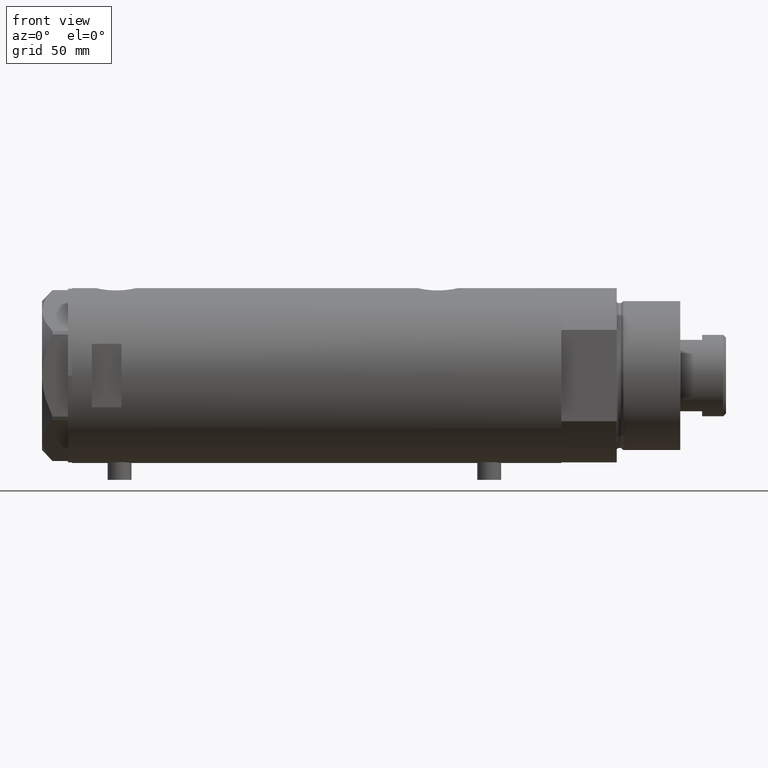
[diagram: clean part render]
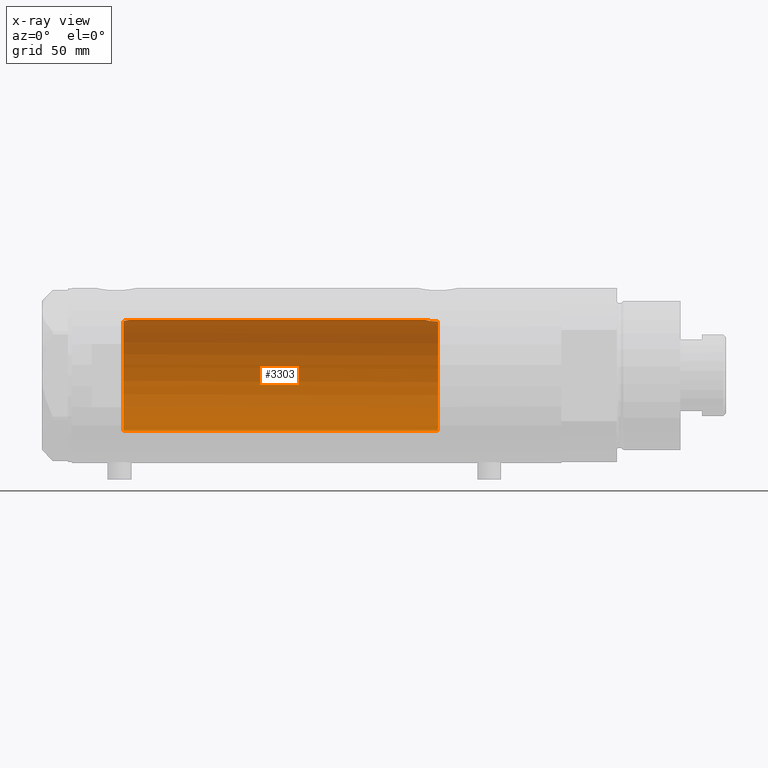
[diagram: x-ray — body ghosted, one internal face saturated and labeled with its STEP entity id]
A machine part, front view, then the same camera in x-ray: the body is ghosted and one INTERNAL B-rep face — a face not visible from any outside direction — is saturated and labeled: STEP entity #3303.
In plain terms, the highlighted cylindrical surface (partial cylindrical patch) has radius 28 mm, axis along (1, 0, -0).
Its self-contained STEP definition (entity closure, byte-faithful):
#8 = CARTESIAN_POINT ( 'NONE',  ( 27.26132124301010506, 6.389601967157234164, -59.46983701249833132 ) ) ;
#42 = CARTESIAN_POINT ( 'NONE',  ( 27.98989376185446076, 0.8673308354119261265, -54.56259295538818321 ) ) ;
#49 = CARTESIAN_POINT ( 'NONE',  ( -28.00000000000000000, 0.000000000000000000, 123.2000000000000028 ) ) ;
#70 = CARTESIAN_POINT ( 'NONE',  ( 27.80267334785860101, 3.323944738624905693, -55.41709962017579727 ) ) ;
#154 = CIRCLE ( 'NONE', #2760, 28.00000000000000000 ) ;
#186 = FACE_OUTER_BOUND ( 'NONE', #2447, .T. ) ;
#268 = CYLINDRICAL_SURFACE ( 'NONE', #3908, 28.00000000000000000 ) ;
#278 = CARTESIAN_POINT ( 'NONE',  ( 27.65669575048418594, 4.382057994727783345, -56.17233761202034259 ) ) ;
#324 = CARTESIAN_POINT ( 'NONE',  ( 27.55311958554908713, 4.984468698502469763, -56.79897075987406652 ) ) ;
#365 = CARTESIAN_POINT ( 'NONE',  ( 27.87926027245440608, 2.609415915507860895, 94.85365920364242243 ) ) ;
#414 = CARTESIAN_POINT ( 'NONE',  ( 27.84585502960274539, 2.940342086136627842, -55.20946914370767189 ) ) ;
#418 = CARTESIAN_POINT ( 'NONE',  ( 28.00000000000000355, 0.5407212781083803321, 94.32000000000002160 ) ) ;
#474 = EDGE_CURVE ( 'NONE', #4202, #590, #2719, .T. ) ;
#590 = VERTEX_POINT ( 'NONE', #4076 ) ;
#663 = VECTOR ( 'NONE', #2183, 1000.000000000000000 ) ;
#671 = CARTESIAN_POINT ( 'NONE',  ( 27.21525044627863466, 6.582564457995937701, -60.98128103916471332 ) ) ;
#812 = CARTESIAN_POINT ( 'NONE',  ( 27.93969014165221765, 1.855286977351521704, 94.58124112405663197 ) ) ;
#897 = DIRECTION ( 'NONE',  ( 0.000000000000000000, 0.000000000000000000, -1.000000000000000000 ) ) ;
#945 = CIRCLE ( 'NONE', #1481, 28.00000000000000000 ) ;
#1058 = ORIENTED_EDGE ( 'NONE', *, *, #4319, .T. ) ;
#1102 = CARTESIAN_POINT ( 'NONE',  ( 27.86588799758911605, 2.744542339393446717, -55.11578757899567904 ) ) ;
#1107 = CARTESIAN_POINT ( 'NONE',  ( 27.98435453724556510, 1.072101232728050579, 94.38566097371688102 ) ) ;
#1132 = CARTESIAN_POINT ( 'NONE',  ( 27.77951318121830582, 3.511620812961470772, -55.53115835401438005 ) ) ;
#1192 = CARTESIAN_POINT ( 'NONE',  ( 28.00000000000000000, 3.429011037612589276E-15, 123.2000000000000028 ) ) ;
#1283 = ORIENTED_EDGE ( 'NONE', *, *, #2285, .T. ) ;
#1330 = CARTESIAN_POINT ( 'NONE',  ( 27.36295003163000672, 5.941130795499224959, -58.23794896005178856 ) ) ;
#1375 = CARTESIAN_POINT ( 'NONE',  ( 27.23306259439848986, 6.508606919525671941, -60.10931986330979981 ) ) ;
#1390 = DIRECTION ( 'NONE',  ( -0.000000000000000000, -0.000000000000000000, -1.000000000000000000 ) ) ;
#1458 = CARTESIAN_POINT ( 'NONE',  ( 27.92057377942992602, 2.145335874642055440, -54.86449057456584910 ) ) ;
#1481 = AXIS2_PLACEMENT_3D ( 'NONE', #1611, #897, #4075 ) ;
#1510 = CARTESIAN_POINT ( 'NONE',  ( 27.52730847012277948, 5.126288527110444804, 96.76623399461909969 ) ) ;
#1520 = CARTESIAN_POINT ( 'NONE',  ( 0.000000000000000000, 0.000000000000000000, 97.20000000000000284 ) ) ;
#1611 = CARTESIAN_POINT ( 'NONE',  ( 0.000000000000000000, 0.000000000000000000, -61.20000000000000284 ) ) ;
#1680 = CARTESIAN_POINT ( 'NONE',  ( 0.000000000000000000, 0.000000000000000000, 123.2000000000000028 ) ) ;
#1713 = CARTESIAN_POINT ( 'NONE',  ( 27.57921322802619812, 4.838471943606454495, -56.63541026849051718 ) ) ;
#1721 = VERTEX_POINT ( 'NONE', #3770 ) ;
#1726 = B_SPLINE_CURVE_WITH_KNOTS ( 'NONE', 3,
 ( #3216, #3581, #42, #2878, #1458, #1102, #414, #70, #1132, #2112, #278, #1713, #324, #2087, #2823, #2735, #1330, #4145, #8, #1375, #2387, #3835, #671, #3856 ),
 .UNSPECIFIED., .F., .F.,
 ( 4, 2, 2, 2, 2, 2, 2, 2, 2, 2, 2, 4 ),
 ( 0.02064447638625017609, 0.02194711032043802218, 0.02324974425462586480, 0.02390106122171978612, 0.02455237818881370743, 0.02585501212300156393, 0.02650632909009548177, 0.02715764605718940308, 0.02846027999137725611, 0.02976291392556511262, 0.03041423089265904087, 0.03106554785975296912 ),
 .UNSPECIFIED. ) ;
#1737 = CARTESIAN_POINT ( 'NONE',  ( 27.46622653369042411, 5.441176343402230664, 97.20000000000000284 ) ) ;
#1935 = VECTOR ( 'NONE', #4041, 1000.000000000000000 ) ;
#2074 = VERTEX_POINT ( 'NONE', #2138 ) ;
#2087 = CARTESIAN_POINT ( 'NONE',  ( 27.50226589723265391, 5.257822516958269965, -57.13779315141980675 ) ) ;
#2112 = CARTESIAN_POINT ( 'NONE',  ( 27.70785054350542964, 4.050475470458768434, -55.89631279652926565 ) ) ;
#2129 = CARTESIAN_POINT ( 'NONE',  ( 27.85549123290575579, 2.850830541327404877, 94.96370468682906107 ) ) ;
#2138 = CARTESIAN_POINT ( 'NONE',  ( 28.00000000000000000, 8.058211040235281960E-16, -54.52000000000001023 ) ) ;
#2183 = DIRECTION ( 'NONE',  ( -0.000000000000000000, -0.000000000000000000, -1.000000000000000000 ) ) ;
#2272 = ORIENTED_EDGE ( 'NONE', *, *, #3791, .F. ) ;
#2285 = EDGE_CURVE ( 'NONE', #1721, #3333, #945, .T. ) ;
#2387 = CARTESIAN_POINT ( 'NONE',  ( 27.22604017942136778, 6.537820648187905981, -60.32472952793342102 ) ) ;
#2447 = EDGE_LOOP ( 'NONE', ( #3790, #4186, #4108, #1058, #1283, #2272 ) ) ;
#2498 = CARTESIAN_POINT ( 'NONE',  ( 27.59012538417911031, 4.776664836238046163, 96.36675298569846859 ) ) ;
#2719 = B_SPLINE_CURVE_WITH_KNOTS ( 'NONE', 3,
 ( #3871, #3584, #1510, #2498, #3964, #3941, #3242, #2129, #365, #4308, #812, #1107, #418, #3217 ),
 .UNSPECIFIED., .F., .F.,
 ( 4, 2, 2, 2, 2, 2, 4 ),
 ( 0.03488855882532450325, 0.03568791961119571754, 0.03648728039706693183, 0.03808600196880933264, 0.03888536275468051917, 0.03968472354055171264, 0.04128344511229409958 ),
 .UNSPECIFIED. ) ;
#2735 = CARTESIAN_POINT ( 'NONE',  ( 27.40633791352276916, 5.740289853568789624, -57.85469713442368800 ) ) ;
#2760 = AXIS2_PLACEMENT_3D ( 'NONE', #1520, #3642, #3573 ) ;
#2823 = CARTESIAN_POINT ( 'NONE',  ( 27.47751794615729537, 5.385218554237039434, -57.31285718566400789 ) ) ;
#2878 = CARTESIAN_POINT ( 'NONE',  ( 27.94984428957576128, 1.729919005741099802, -54.73624844305086157 ) ) ;
#3216 = CARTESIAN_POINT ( 'NONE',  ( 28.00000000000000000, 8.058211040235281960E-16, -54.52000000000001023 ) ) ;
#3217 = CARTESIAN_POINT ( 'NONE',  ( 28.00000000000000000, 0.000000000000000000, 94.32000000000000739 ) ) ;
#3242 = CARTESIAN_POINT ( 'NONE',  ( 27.77752716845531822, 3.554080867558359280, 95.33702809021860958 ) ) ;
#3303 = ADVANCED_FACE ( 'NONE', ( #186 ), #268, .F. ) ;
#3333 = VERTEX_POINT ( 'NONE', #3515 ) ;
#3383 = CARTESIAN_POINT ( 'NONE',  ( -28.00000000000000000, 0.000000000000000000, 97.20000000000000284 ) ) ;
#3515 = CARTESIAN_POINT ( 'NONE',  ( 27.21605408577812568, 6.579240077698938371, -61.20000000000000284 ) ) ;
#3573 = DIRECTION ( 'NONE',  ( 1.000000000000000000, 0.000000000000000000, 0.000000000000000000 ) ) ;
#3581 = CARTESIAN_POINT ( 'NONE',  ( 28.00000000000000711, 0.4344375524774768960, -54.52000000000001734 ) ) ;
#3584 = CARTESIAN_POINT ( 'NONE',  ( 27.49602064413222635, 5.290780227724656726, 96.97882924682042471 ) ) ;
#3642 = DIRECTION ( 'NONE',  ( 0.000000000000000000, 0.000000000000000000, 1.000000000000000000 ) ) ;
#3668 = VERTEX_POINT ( 'NONE', #3383 ) ;
#3770 = CARTESIAN_POINT ( 'NONE',  ( -28.00000000000000000, 0.000000000000000000, -61.20000000000000284 ) ) ;
#3790 = ORIENTED_EDGE ( 'NONE', *, *, #4070, .F. ) ;
#3791 = EDGE_CURVE ( 'NONE', #2074, #3333, #1726, .T. ) ;
#3835 = CARTESIAN_POINT ( 'NONE',  ( 27.21712162367727927, 6.574850051620745539, -60.76016190408789441 ) ) ;
#3856 = CARTESIAN_POINT ( 'NONE',  ( 27.21605408577812568, 6.579240077698938371, -61.20000000000000284 ) ) ;
#3871 = CARTESIAN_POINT ( 'NONE',  ( 27.46622653369042411, 5.441176343402230664, 97.20000000000000284 ) ) ;
#3901 = EDGE_CURVE ( 'NONE', #4202, #3668, #154, .T. ) ;
#3908 = AXIS2_PLACEMENT_3D ( 'NONE', #1680, #1390, #4457 ) ;
#3941 = CARTESIAN_POINT ( 'NONE',  ( 27.71586615897684780, 3.998795151939225523, 95.64767395625746360 ) ) ;
#3944 = LINE ( 'NONE', #49, #663 ) ;
#3964 = CARTESIAN_POINT ( 'NONE',  ( 27.62184089756353700, 4.590621453796800644, 96.17847296394720047 ) ) ;
#4041 = DIRECTION ( 'NONE',  ( -0.000000000000000000, -0.000000000000000000, -1.000000000000000000 ) ) ;
#4070 = EDGE_CURVE ( 'NONE', #590, #2074, #4400, .T. ) ;
#4075 = DIRECTION ( 'NONE',  ( -1.000000000000000000, 0.000000000000000000, 0.000000000000000000 ) ) ;
#4076 = CARTESIAN_POINT ( 'NONE',  ( 28.00000000000000000, 0.000000000000000000, 94.32000000000000739 ) ) ;
#4108 = ORIENTED_EDGE ( 'NONE', *, *, #3901, .T. ) ;
#4145 = CARTESIAN_POINT ( 'NONE',  ( 27.28989504668422228, 6.268149480003692098, -59.05093353430706316 ) ) ;
#4186 = ORIENTED_EDGE ( 'NONE', *, *, #474, .F. ) ;
#4202 = VERTEX_POINT ( 'NONE', #1737 ) ;
#4308 = CARTESIAN_POINT ( 'NONE',  ( 27.92131942247208798, 2.112374604004425116, 94.66259974202708349 ) ) ;
#4319 = EDGE_CURVE ( 'NONE', #3668, #1721, #3944, .T. ) ;
#4400 = LINE ( 'NONE', #1192, #1935 ) ;
#4457 = DIRECTION ( 'NONE',  ( -1.000000000000000000, 0.000000000000000000, 0.000000000000000000 ) ) ;